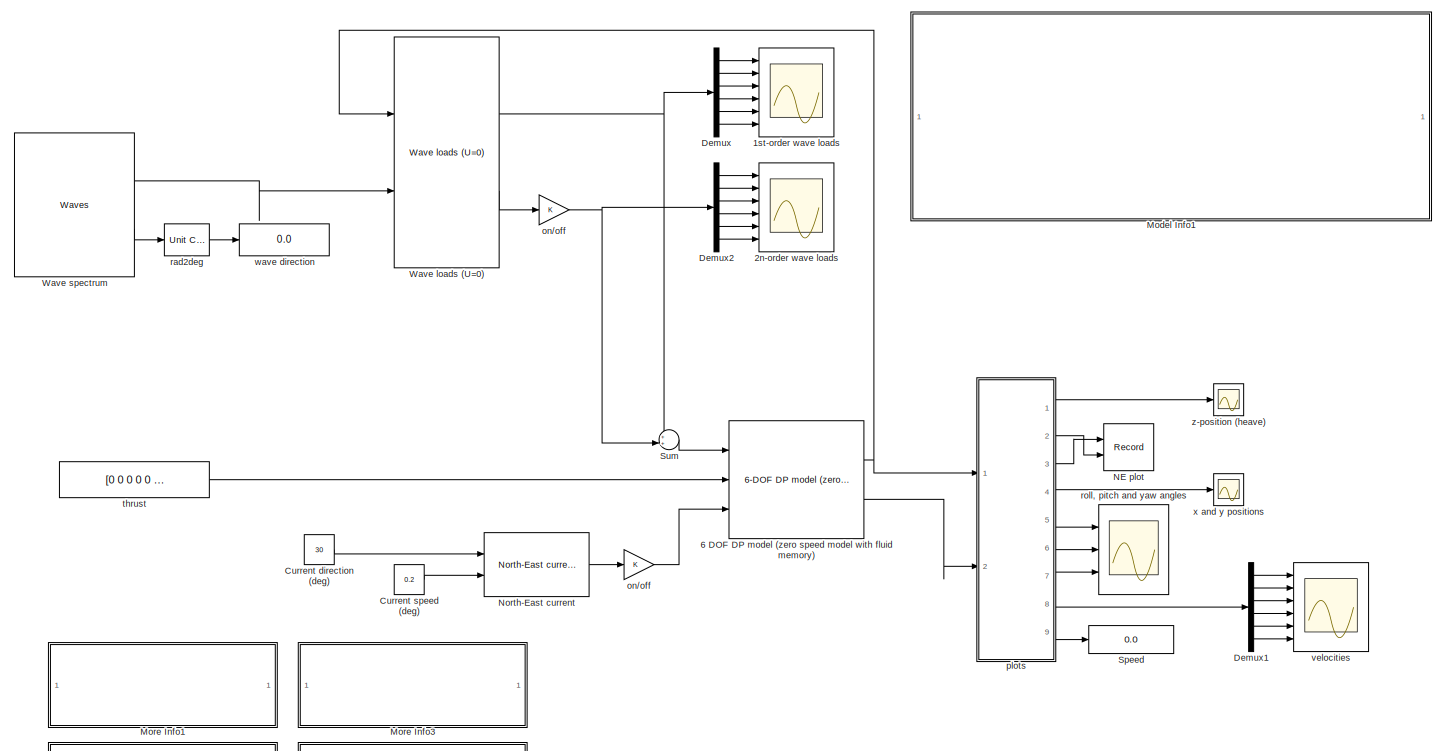
[diagram: root canvas - part 1/2, most of the canvas]
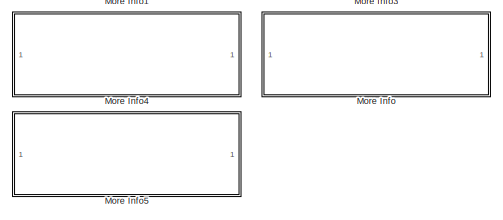
[diagram: root canvas - part 2/2, bottom left region]
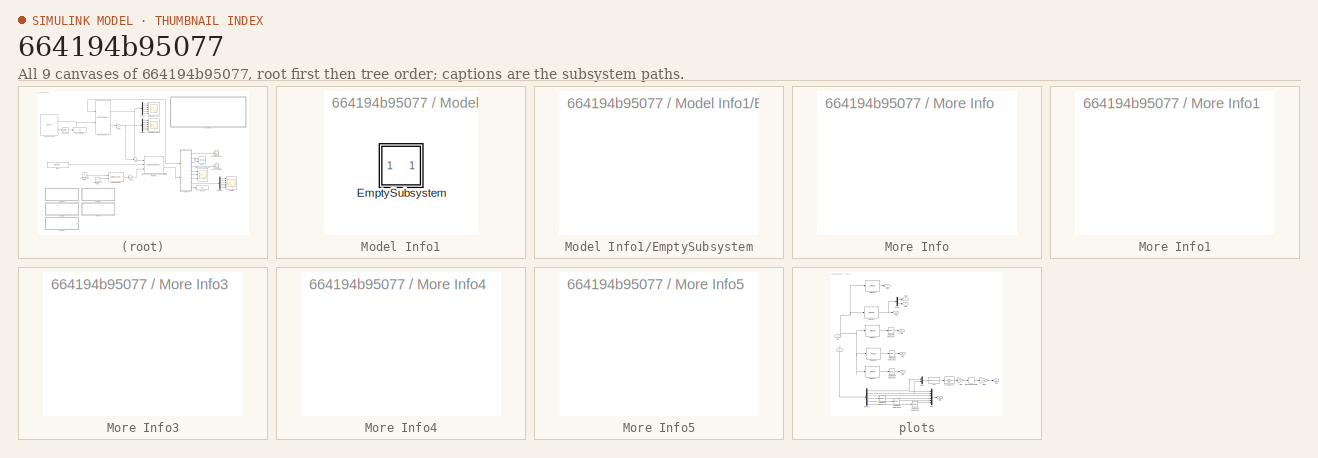
[diagram: thumbnail index - all 9 canvases of the model, root first then tree order]
MODEL slx_664194b95077
KIND model
CONFIG AbsTol = auto
CONFIG EnableMultiTasking = on
CONFIG FixedStep = 0.05
CONFIG MaxStep = auto
CONFIG MinStep = auto
CONFIG RelTol = 1e-3
CONFIG SampleTimeConstraint = Unconstrained
CONFIG SolverName = ode4
CONFIG StartTime = 0.0
CONFIG StopTime = 200
BLOCK [Scope] 1st-order wave loads 
  Floating = off
  NumInputPorts = 6
  Ports = [6]
  ScopeSpecificationString = Simulink.scopes.TimeScopeBlockCfg('CurrentConfiguration', extmgr.ConfigurationSet(extmgr.Configuration('Core','General UI',true),extmgr.Configuration('Core','Source UI',true),extmgr.Configuration('Sources','WiredSimulink',true,'DataLoggingSaveFormat','StructureWithTime','DataLoggingLimitDataPoints',true,'DataLoggingDecimation','1','DataLoggingDecimateData',true),extmgr.Configuration('Visuals','Tim...<+5254ch>
BLOCK [Scope] 2n-order wave loads
  Floating = off
  NumInputPorts = 6
  Ports = [6]
  ScopeSpecificationString = Simulink.scopes.TimeScopeBlockCfg('CurrentConfiguration', extmgr.ConfigurationSet(extmgr.Configuration('Core','General UI',true),extmgr.Configuration('Core','Source UI',true),extmgr.Configuration('Sources','WiredSimulink',true,'DataLoggingVariableName','ScopeData5','DataLoggingSaveFormat','StructureWithTime','DataLoggingLimitDataPoints',true,'DataLoggingDecimation','1','DataLoggingDecimateData',tr...<+5225ch>
BLOCK [Reference] 6 DOF DP model (zero speed model with fluid memory)   REF=mssSimulink/Hydrodynamics/6-DOF DP model
 (zero-speed model with fluid memory)
  Ports = [3, 2]
  SourceBlock = mssSimulink/Hydrodynamics/6-DOF DP model\n (zero-speed model with fluid memory)
  SourceType = 6 DOF zero speed model
BLOCK [Constant] Current direction (deg)
  Value = 30
BLOCK [Constant] Current speed (deg)
  Value = 0.2
BLOCK [Demux] Demux
  DisplayOption = none
  Outputs = 6
  Ports = [1, 6]
BLOCK [Demux] Demux1
  DisplayOption = none
  Outputs = 6
  Ports = [1, 6]
BLOCK [Demux] Demux2
  DisplayOption = none
  Outputs = 6
  Ports = [1, 6]
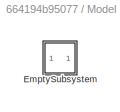
BLOCK [SubSystem] Model Info1
  CopyFcn = slcm CopyBlock;
  DeleteFcn = slcm Cancel;
  InitFcn = slcm('UpdateAllCMBlocksInThisModelInit')
  LoadFcn = slcm LoadBlock;
  NameChangeFcn = slcm Rename;
  OpenFcn = slcm
  Ports = []
  PostSaveFcn = slcm('UpdateAllCMBlocksInThisModel')
  RequestExecContextInheritance = off
BLOCK [SubSystem] Model Info1/EmptySubsystem
  Ports = []
  RequestExecContextInheritance = off
BLOCK [SubSystem] More Info
  OpenFcn = load('supply'),load('supplyABC');disp('MSS supply vessel data set (L = 82.80 m) loaded')
  Ports = []
  RequestExecContextInheritance = off
BLOCK [SubSystem] More Info1
  OpenFcn = load('tanker'),load('tankerABC');disp('MSS tanker data set (L = 246.0 m) loaded')
  Ports = []
  RequestExecContextInheritance = off
BLOCK [SubSystem] More Info3
  OpenFcn = load('s175'),load('s175ABC');disp('MSS S175 data set (L = 175.0 m) loaded')
  Ports = []
  RequestExecContextInheritance = off
BLOCK [SubSystem] More Info4
  OpenFcn = load('fpso'),load('fpsoABC');disp('MSS FPSO data set (L = 200.0 m) loaded')
  Ports = []
  RequestExecContextInheritance = off
BLOCK [SubSystem] More Info5
  OpenFcn = load('semisub'),load('semisubABC');disp('MSS semi-sub data set (L = 115.0 m) loaded')
  Ports = []
  RequestExecContextInheritance = off
BLOCK [Record] NE plot
  CompatibilityTag = XY
  FileSettingsInternal = {"entries":[{"content":{"excelSettings":{"content":{},"type":"Streamout.ExcelSettings"}},"type":"Streamout.FileSettingStorage","uuid":"154cc0b0-1358-45c3-9dd3-18d182d9f9f9"}],"packageUris":["http://schema.mathworks.com/mf0/streamout_blocks/R2020a"],"version":"1.0"}
  Layout = [1 1]
  Ports = [2]
  SignalsInternal = {"entries":[{"content":{"signals":[{"content":{"blockPath":["DP_ForceRAO/NE plot"],"channel":[],"dimensions":[1],"domain":"DP_ForceRAO/NE plot","lineColor":"#a2142f","plots":[1],"port":1,"sid":[""],"signalID":181,"signalName":"plots:3"},"type":"RecordBlkView.Signal","uuid":"3f50809a-6568-487b-ad13-a3f903f4eb0a"},{"content":{"blockPath":["DP_ForceRAO/NE plot"],"channel":[],"dimensions":[1],"domain"...<+369ch>
  VisualizationBindings = {"xyplotplugin":{"info":[{"series":[{"bindingParametersList":[{"parameter":"X-Axis","signalID":181,"signalName":"plots:3"},{"parameter":"Y-Axis","signalID":185,"signalName":"plots:2"}],"seriesID":43487}],"subplotID":1}]}}
  st = -1
BLOCK [Reference] North-East current   REF=mssSimulink/Environment/Current/North-East current
  Ports = [2, 1]
  SourceBlock = mssSimulink/Environment/Current/North-East current
  SourceType = SubSystem
BLOCK [Display] Speed
  Decimation = 1
  Ports = [1]
BLOCK [Sum] Sum
  Inputs = ++|
  Ports = [2, 1]
BLOCK [Reference] Wave loads (U=0)   REF=mssSimulink/Hydrodynamics/Wave loads (U=0)
  Ports = [2, 2]
  SourceBlock = mssSimulink/Hydrodynamics/Wave loads (U=0)
  SourceType = SubSystem
BLOCK [Reference] Wave spectrum  REF=mssSimulink/Environment/Waves/Waves
  Ports = [0, 2]
  SourceBlock = mssSimulink/Environment/Waves/Waves
  SourceType = Waves
BLOCK [Gain] on//off
BLOCK [Gain] on//off 
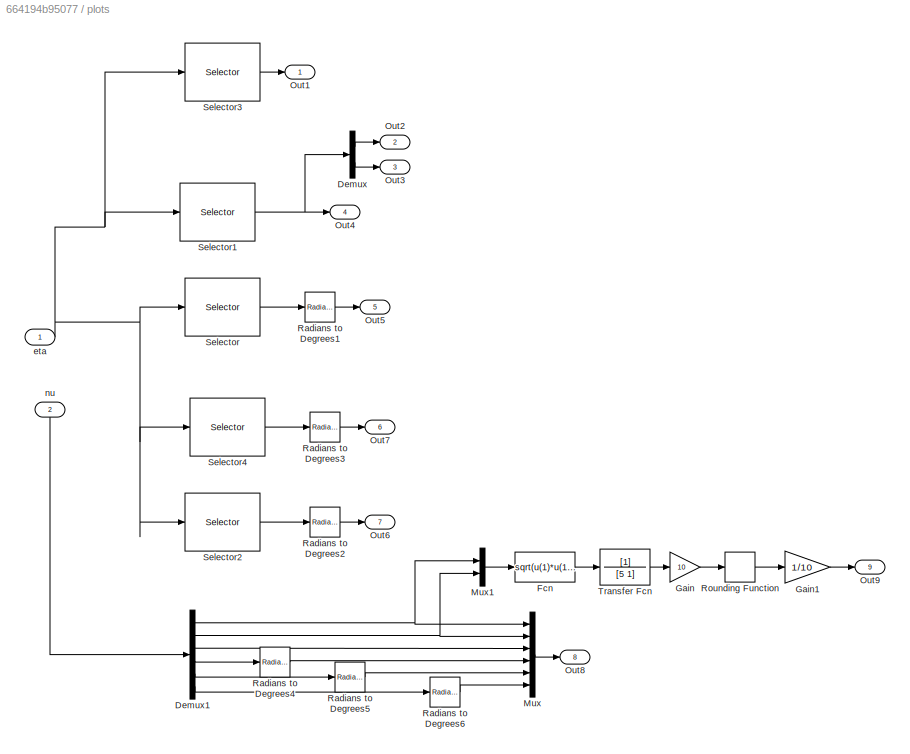
BLOCK [SubSystem] plots
  Ports = [2, 9]
  RequestExecContextInheritance = off
BLOCK [Demux] plots/Demux
  DisplayOption = none
  Outputs = 2
  Ports = [1, 2]
BLOCK [Demux] plots/Demux1
  DisplayOption = none
  Outputs = 6
  Ports = [1, 6]
BLOCK [Fcn] plots/Fcn
  Expr = sqrt(u(1)*u(1)+u(2)*u(2))
BLOCK [Gain] plots/Gain
  Gain = 10
BLOCK [Gain] plots/Gain1
  Gain = 1/10
BLOCK [Mux] plots/Mux
  DisplayOption = bar
  Inputs = 6
  Ports = [6, 1]
BLOCK [Mux] plots/Mux1
  DisplayOption = bar
  Inputs = 2
  Ports = [2, 1]
BLOCK [Outport] plots/Out1
BLOCK [Outport] plots/Out2
  Port = 2
BLOCK [Outport] plots/Out3
  Port = 3
BLOCK [Outport] plots/Out4
  Port = 4
BLOCK [Outport] plots/Out5
  Port = 5
BLOCK [Outport] plots/Out6
  Port = 7
BLOCK [Outport] plots/Out7
  Port = 6
BLOCK [Outport] plots/Out8
  Port = 8
BLOCK [Outport] plots/Out9
  Port = 9
BLOCK [Reference] plots/Radians to Degrees1  REF=simulink_extras/Transformations/Radians
to Degrees
  Ports = [1, 1]
  SourceBlock = simulink_extras/Transformations/Radians\nto Degrees
  SourceProductBaseCode = SL
  SourceType = RadiansToDegrees
BLOCK [Reference] plots/Radians to Degrees2  REF=simulink_extras/Transformations/Radians
to Degrees
  Ports = [1, 1]
  SourceBlock = simulink_extras/Transformations/Radians\nto Degrees
  SourceProductBaseCode = SL
  SourceType = RadiansToDegrees
BLOCK [Reference] plots/Radians to Degrees3  REF=simulink_extras/Transformations/Radians
to Degrees
  Ports = [1, 1]
  SourceBlock = simulink_extras/Transformations/Radians\nto Degrees
  SourceProductBaseCode = SL
  SourceType = RadiansToDegrees
BLOCK [Reference] plots/Radians to Degrees4  REF=simulink_extras/Transformations/Radians
to Degrees
  Ports = [1, 1]
  SourceBlock = simulink_extras/Transformations/Radians\nto Degrees
  SourceProductBaseCode = SL
  SourceType = RadiansToDegrees
BLOCK [Reference] plots/Radians to Degrees5  REF=simulink_extras/Transformations/Radians
to Degrees
  Ports = [1, 1]
  SourceBlock = simulink_extras/Transformations/Radians\nto Degrees
  SourceProductBaseCode = SL
  SourceType = RadiansToDegrees
BLOCK [Reference] plots/Radians to Degrees6  REF=simulink_extras/Transformations/Radians
to Degrees
  Ports = [1, 1]
  SourceBlock = simulink_extras/Transformations/Radians\nto Degrees
  SourceProductBaseCode = SL
  SourceType = RadiansToDegrees
BLOCK [Rounding] plots/Rounding Function
BLOCK [Selector] plots/Selector
  IndexOptions = Index vector (dialog)
  Indices = [4 ]
  InputPortWidth = 6
  OutputSizes = 1
  Ports = [1, 1]
BLOCK [Selector] plots/Selector1
  IndexOptions = Index vector (dialog)
  Indices = [1 2]
  InputPortWidth = 6
  OutputSizes = 1
  Ports = [1, 1]
BLOCK [Selector] plots/Selector2
  IndexOptions = Index vector (dialog)
  Indices = [6]
  InputPortWidth = 6
  OutputSizes = 1
  Ports = [1, 1]
BLOCK [Selector] plots/Selector3
  IndexOptions = Index vector (dialog)
  Indices = [3]
  InputPortWidth = 6
  OutputSizes = 1
  Ports = [1, 1]
BLOCK [Selector] plots/Selector4
  IndexOptions = Index vector (dialog)
  Indices = [5]
  InputPortWidth = 6
  OutputSizes = 1
  Ports = [1, 1]
BLOCK [TransferFcn] plots/Transfer Fcn
  Denominator = [5 1]
BLOCK [Inport] plots/eta
BLOCK [Inport] plots/nu
  NameLocation = left
  Port = 2
BLOCK [Reference] rad2deg  REF=mssSimulink/Utilities/Math Operations/Unit Conversion
  Ports = [1, 1]
  SourceBlock = mssSimulink/Utilities/Math Operations/Unit Conversion
  SourceType = Unit Conversion
BLOCK [Scope] roll, pitch and yaw angles
  Floating = off
  NumInputPorts = 3
  Ports = [3]
  ScopeSpecificationString = Simulink.scopes.TimeScopeBlockCfg('CurrentConfiguration', extmgr.ConfigurationSet(extmgr.Configuration('Core','General UI',true),extmgr.Configuration('Core','Source UI',true),extmgr.Configuration('Sources','WiredSimulink',true,'DataLoggingVariableName','ScopeData1','DataLoggingSaveFormat','StructureWithTime','DataLoggingLimitDataPoints',true,'DataLoggingDecimation','1','DataLoggingDecimateData',tr...<+3105ch>
BLOCK [Constant] thrust
  Value = [0 0 0 0 0 0]'
BLOCK [Scope] velocities
  Floating = off
  NumInputPorts = 6
  Ports = [6]
  ScopeSpecificationString = Simulink.scopes.TimeScopeBlockCfg('CurrentConfiguration', extmgr.ConfigurationSet(extmgr.Configuration('Core','General UI',true),extmgr.Configuration('Core','Source UI',true),extmgr.Configuration('Sources','WiredSimulink',true,'DataLoggingVariableName','ScopeData4','DataLoggingSaveFormat','StructureWithTime','DataLoggingLimitDataPoints',true,'DataLoggingDecimation','1','DataLoggingDecimateData',tr...<+5198ch>
BLOCK [Display] wave direction
  Decimation = 1
  Ports = [1]
BLOCK [Scope] x and y positions
  Floating = off
  NumInputPorts = 1
  Ports = [1]
  ScopeSpecificationString = C++SS(StrPVP('Location','[781, 760, 1393, 1048]'),StrPVP('Open','off'),MxPVP('AxesTitles',54,'struct(''axes1'',''%<SignalLabel>'')'),StrPVP('TimeRange','200'),StrPVP('YMin','-3'),StrPVP('YMax','3'),StrPVP('SaveName','ScopeData2'),StrPVP('DataFormat','StructureWithTime'),StrPVP('BlockParamSampleTime','0'),StrPVP('LimitDataPoints','on'),StrPVP('Decimation','1'),StrPVP('BlockParamSampleInput','off'))
BLOCK [Scope] z-position (heave)
  Floating = off
  NumInputPorts = 1
  Ports = [1]
  ScopeSpecificationString = Simulink.scopes.TimeScopeBlockCfg('CurrentConfiguration', extmgr.ConfigurationSet(extmgr.Configuration('Core','General UI',true),extmgr.Configuration('Core','Source UI',true),extmgr.Configuration('Sources','WiredSimulink',true,'DataLoggingVariableName','ScopeData3','DataLoggingSaveFormat','StructureWithTime','DataLoggingLimitDataPoints',true,'DataLoggingDecimation','1','DataLoggingDecimateData',tr...<+1775ch>
NET 6 DOF DP model (zero speed model with fluid memory) :1 -> Wave loads (U=0) :1, plots:1
LINE 6 DOF DP model (zero speed model with fluid memory) :2 -> plots:2
LINE Current direction (deg):1 -> North-East current :1
LINE Current speed (deg):1 -> North-East current :2
LINE Demux1:1 -> velocities:1
LINE Demux1:2 -> velocities:2
LINE Demux1:3 -> velocities:3
LINE Demux1:4 -> velocities:4
LINE Demux1:5 -> velocities:5
LINE Demux1:6 -> velocities:6
LINE Demux2:1 -> 2n-order wave loads:1
LINE Demux2:2 -> 2n-order wave loads:2
LINE Demux2:3 -> 2n-order wave loads:3
LINE Demux2:4 -> 2n-order wave loads:4
LINE Demux2:5 -> 2n-order wave loads:5
LINE Demux2:6 -> 2n-order wave loads:6
LINE Demux:1 -> 1st-order wave loads :1
LINE Demux:2 -> 1st-order wave loads :2
LINE Demux:3 -> 1st-order wave loads :3
LINE Demux:4 -> 1st-order wave loads :4
LINE Demux:5 -> 1st-order wave loads :5
LINE Demux:6 -> 1st-order wave loads :6
LINE North-East current :1 -> on//off :1
LINE Sum:1 -> 6 DOF DP model (zero speed model with fluid memory) :1
NET Wave loads (U=0) :1 -> Demux:1, Sum:1
LINE Wave loads (U=0) :2 -> on//off:1
LINE Wave spectrum:1 -> Wave loads (U=0) :2
LINE Wave spectrum:2 -> rad2deg:1
LINE on//off :1 -> 6 DOF DP model (zero speed model with fluid memory) :3
NET on//off:1 -> Demux2:1, Sum:2
NET plots/Demux1:1 -> plots/Mux1:1, plots/Mux:1
NET plots/Demux1:2 -> plots/Mux1:2, plots/Mux:2
LINE plots/Demux1:3 -> plots/Mux:3
LINE plots/Demux1:4 -> plots/Radians to Degrees4:1
LINE plots/Demux1:5 -> plots/Radians to Degrees5:1
LINE plots/Demux1:6 -> plots/Radians to Degrees6:1
LINE plots/Demux:1 -> plots/Out2:1
LINE plots/Demux:2 -> plots/Out3:1
LINE plots/Fcn:1 -> plots/Transfer Fcn:1
LINE plots/Gain1:1 -> plots/Out9:1
LINE plots/Gain:1 -> plots/Rounding Function:1
LINE plots/Mux1:1 -> plots/Fcn:1
LINE plots/Mux:1 -> plots/Out8:1
LINE plots/Radians to Degrees1:1 -> plots/Out5:1
LINE plots/Radians to Degrees2:1 -> plots/Out6:1
LINE plots/Radians to Degrees3:1 -> plots/Out7:1
LINE plots/Radians to Degrees4:1 -> plots/Mux:4
LINE plots/Radians to Degrees5:1 -> plots/Mux:5
LINE plots/Radians to Degrees6:1 -> plots/Mux:6
LINE plots/Rounding Function:1 -> plots/Gain1:1
NET plots/Selector1:1 -> plots/Demux:1, plots/Out4:1
LINE plots/Selector2:1 -> plots/Radians to Degrees2:1
LINE plots/Selector3:1 -> plots/Out1:1
LINE plots/Selector4:1 -> plots/Radians to Degrees3:1
LINE plots/Selector:1 -> plots/Radians to Degrees1:1
LINE plots/Transfer Fcn:1 -> plots/Gain:1
NET plots/eta:1 -> plots/Selector1:1, plots/Selector2:1, plots/Selector3:1, plots/Selector4:1, plots/Selector:1
LINE plots/nu:1 -> plots/Demux1:1
LINE plots:1 -> z-position (heave):1
LINE plots:2 -> NE plot:2
LINE plots:3 -> NE plot:1
LINE plots:4 -> x and y positions:1
LINE plots:5 -> roll, pitch and yaw angles:1
LINE plots:6 -> roll, pitch and yaw angles:2
LINE plots:7 -> roll, pitch and yaw angles:3
LINE plots:8 -> Demux1:1
LINE plots:9 -> Speed:1
LINE rad2deg:1 -> wave direction:1
LINE thrust:1 -> 6 DOF DP model (zero speed model with fluid memory) :2
note: NET lines group one-source signal fan-out (src -> all destinations, sorted); 1:1 wires keep LINE
